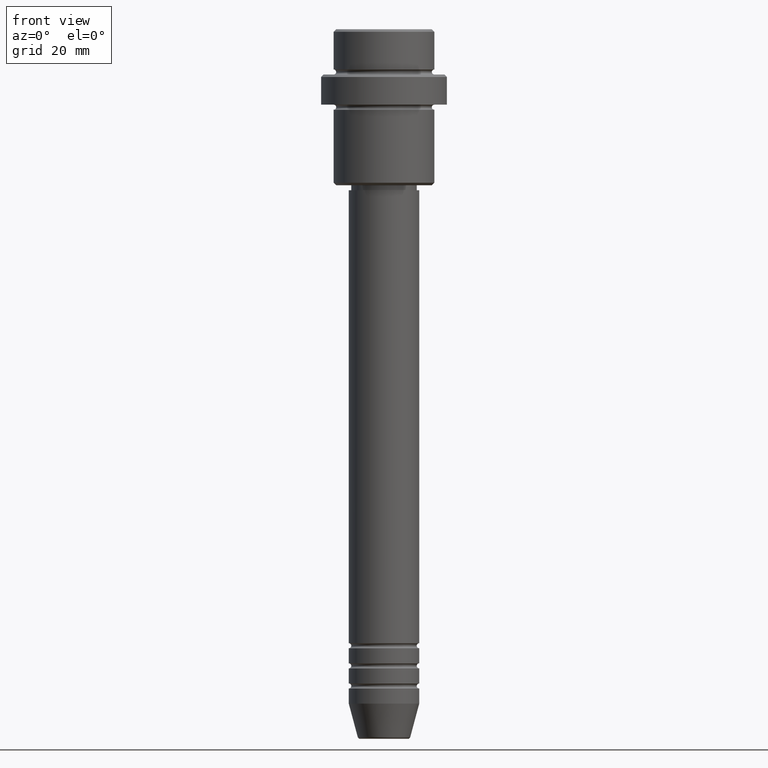
[diagram: clean part render]
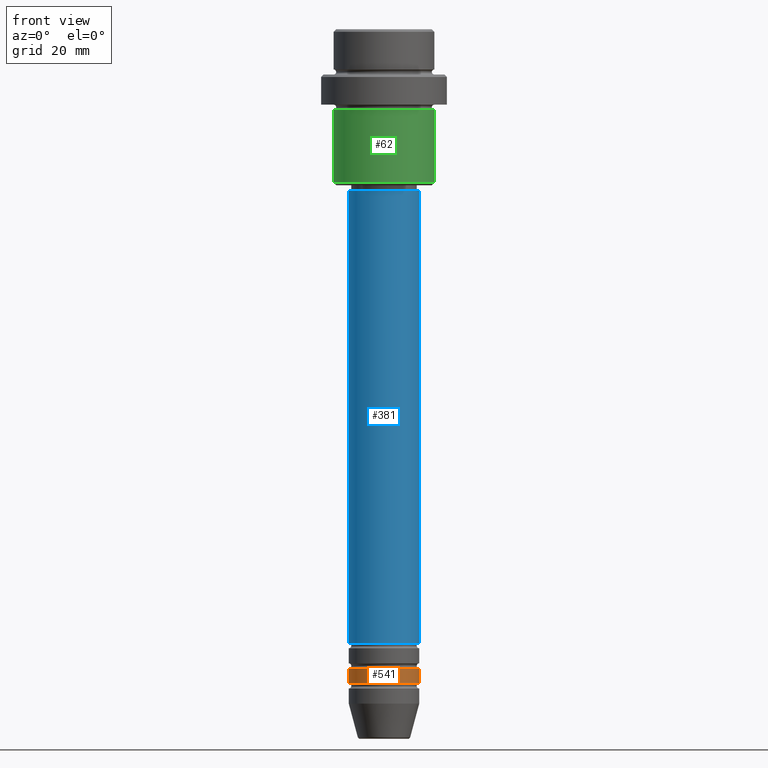
[diagram: same view with three faces highlighted in distinct colors, each labeled with its STEP entity id]
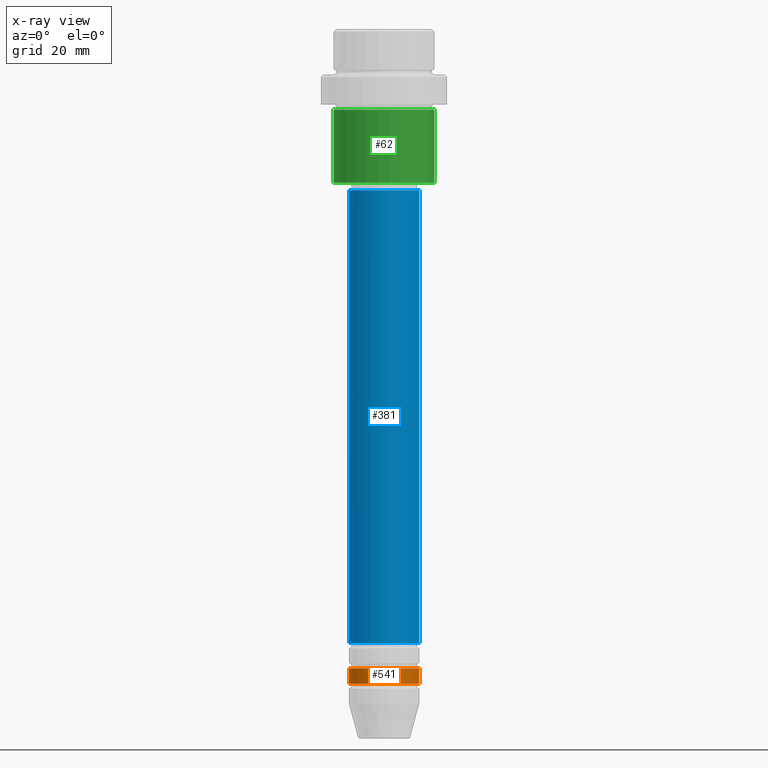
[diagram: x-ray of the same camera — body ghosted, the three highlighted faces saturated]
A machine part, front view with three faces highlighted in distinct colors.
The next image is the same camera in x-ray (body ghosted, the three faces saturated) — at least one of them is partly hidden behind the body in this view.
Their STEP definitions:

[orange] entity #541 — the highlighted cylindrical surface (edge-blend (fillet) strip) has radius 7 mm, axis along (-0, -0, 1).
#3 = CIRCLE ( 'NONE', #1306, 7.000000000000000000 ) ;
#32 = DIRECTION ( 'NONE',  ( -0.000000000000000000, -0.000000000000000000, 1.000000000000000000 ) ) ;
#33 = ORIENTED_EDGE ( 'NONE', *, *, #493, .F. ) ;
#52 = CARTESIAN_POINT ( 'NONE',  ( 0.000000000000000000, 0.000000000000000000, -129.9999999999998863 ) ) ;
#56 = VERTEX_POINT ( 'NONE', #153 ) ;
#122 = DIRECTION ( 'NONE',  ( 1.000000000000000000, 0.000000000000000000, 0.000000000000000000 ) ) ;
#153 = CARTESIAN_POINT ( 'NONE',  ( -7.000000000000000000, 8.572527594031473190E-16, -129.9999999999998863 ) ) ;
#187 = EDGE_CURVE ( 'NONE', #272, #600, #317, .T. ) ;
#272 = VERTEX_POINT ( 'NONE', #753 ) ;
#310 = ORIENTED_EDGE ( 'NONE', *, *, #187, .T. ) ;
#315 = ORIENTED_EDGE ( 'NONE', *, *, #426, .F. ) ;
#317 = LINE ( 'NONE', #637, #765 ) ;
#321 = EDGE_CURVE ( 'NONE', #56, #272, #3, .T. ) ;
#327 = AXIS2_PLACEMENT_3D ( 'NONE', #1308, #971, #122 ) ;
#338 = DIRECTION ( 'NONE',  ( -0.000000000000000000, -0.000000000000000000, 1.000000000000000000 ) ) ;
#423 = LINE ( 'NONE', #817, #855 ) ;
#426 = EDGE_CURVE ( 'NONE', #56, #962, #423, .T. ) ;
#431 = CYLINDRICAL_SURFACE ( 'NONE', #327, 7.000000000000000000 ) ;
#493 = EDGE_CURVE ( 'NONE', #962, #600, #500, .T. ) ;
#500 = CIRCLE ( 'NONE', #829, 7.000000000000000000 ) ;
#540 = FACE_OUTER_BOUND ( 'NONE', #1066, .T. ) ;
#541 = ADVANCED_FACE ( 'NONE', ( #540 ), #431, .T. ) ;
#548 = CARTESIAN_POINT ( 'NONE',  ( 0.000000000000000000, 0.000000000000000000, -126.9999999999998863 ) ) ;
#553 = DIRECTION ( 'NONE',  ( -0.000000000000000000, -0.000000000000000000, 1.000000000000000000 ) ) ;
#600 = VERTEX_POINT ( 'NONE', #664 ) ;
#637 = CARTESIAN_POINT ( 'NONE',  ( 7.000000000000000000, 0.000000000000000000, 0.000000000000000000 ) ) ;
#664 = CARTESIAN_POINT ( 'NONE',  ( 7.000000000000000000, 0.000000000000000000, -126.9999999999998863 ) ) ;
#753 = CARTESIAN_POINT ( 'NONE',  ( 7.000000000000000000, 0.000000000000000000, -129.9999999999998863 ) ) ;
#765 = VECTOR ( 'NONE', #553, 1000.000000000000000 ) ;
#817 = CARTESIAN_POINT ( 'NONE',  ( -7.000000000000000000, 8.572527594031473190E-16, 0.000000000000000000 ) ) ;
#829 = AXIS2_PLACEMENT_3D ( 'NONE', #548, #338, #1326 ) ;
#849 = CARTESIAN_POINT ( 'NONE',  ( -7.000000000000000000, 8.572527594031473190E-16, -126.9999999999998863 ) ) ;
#855 = VECTOR ( 'NONE', #1290, 1000.000000000000000 ) ;
#962 = VERTEX_POINT ( 'NONE', #849 ) ;
#971 = DIRECTION ( 'NONE',  ( -0.000000000000000000, -0.000000000000000000, 1.000000000000000000 ) ) ;
#1066 = EDGE_LOOP ( 'NONE', ( #315, #1092, #310, #33 ) ) ;
#1092 = ORIENTED_EDGE ( 'NONE', *, *, #321, .T. ) ;
#1228 = DIRECTION ( 'NONE',  ( 1.000000000000000000, 0.000000000000000000, 0.000000000000000000 ) ) ;
#1290 = DIRECTION ( 'NONE',  ( -0.000000000000000000, -0.000000000000000000, 1.000000000000000000 ) ) ;
#1306 = AXIS2_PLACEMENT_3D ( 'NONE', #52, #32, #1228 ) ;
#1308 = CARTESIAN_POINT ( 'NONE',  ( 0.000000000000000000, 0.000000000000000000, 0.000000000000000000 ) ) ;
#1326 = DIRECTION ( 'NONE',  ( 1.000000000000000000, 0.000000000000000000, 0.000000000000000000 ) ) ;

[blue] entity #381 — the highlighted cylindrical surface (edge-blend (fillet) strip) has radius 7 mm, axis along (-0, -0, 1).
#13 = DIRECTION ( 'NONE',  ( -0.000000000000000000, -0.000000000000000000, 1.000000000000000000 ) ) ;
#38 = EDGE_CURVE ( 'NONE', #497, #132, #924, .T. ) ;
#54 = CARTESIAN_POINT ( 'NONE',  ( 0.000000000000000000, 0.000000000000000000, -121.9999999999999005 ) ) ;
#69 = ORIENTED_EDGE ( 'NONE', *, *, #38, .T. ) ;
#117 = CARTESIAN_POINT ( 'NONE',  ( -7.000000000000000000, 8.572527594031473190E-16, -121.9999999999999005 ) ) ;
#132 = VERTEX_POINT ( 'NONE', #1057 ) ;
#183 = ORIENTED_EDGE ( 'NONE', *, *, #1186, .F. ) ;
#208 = LINE ( 'NONE', #337, #723 ) ;
#269 = FACE_OUTER_BOUND ( 'NONE', #492, .T. ) ;
#270 = DIRECTION ( 'NONE',  ( -0.000000000000000000, -0.000000000000000000, 1.000000000000000000 ) ) ;
#294 = DIRECTION ( 'NONE',  ( 1.000000000000000000, 0.000000000000000000, 0.000000000000000000 ) ) ;
#337 = CARTESIAN_POINT ( 'NONE',  ( -7.000000000000000000, 8.572527594031473190E-16, 0.000000000000000000 ) ) ;
#345 = CARTESIAN_POINT ( 'NONE',  ( 7.000000000000000000, 0.000000000000000000, -32.00000000000000000 ) ) ;
#381 = ADVANCED_FACE ( 'NONE', ( #269 ), #1118, .T. ) ;
#405 = CARTESIAN_POINT ( 'NONE',  ( 0.000000000000000000, 0.000000000000000000, -32.00000000000000000 ) ) ;
#471 = ORIENTED_EDGE ( 'NONE', *, *, #938, .T. ) ;
#485 = CARTESIAN_POINT ( 'NONE',  ( 0.000000000000000000, 0.000000000000000000, 0.000000000000000000 ) ) ;
#492 = EDGE_LOOP ( 'NONE', ( #683, #69, #471, #183 ) ) ;
#497 = VERTEX_POINT ( 'NONE', #117 ) ;
#591 = DIRECTION ( 'NONE',  ( 1.000000000000000000, 0.000000000000000000, 0.000000000000000000 ) ) ;
#654 = LINE ( 'NONE', #866, #1372 ) ;
#683 = ORIENTED_EDGE ( 'NONE', *, *, #892, .F. ) ;
#699 = DIRECTION ( 'NONE',  ( -0.000000000000000000, -0.000000000000000000, 1.000000000000000000 ) ) ;
#705 = VERTEX_POINT ( 'NONE', #1336 ) ;
#718 = AXIS2_PLACEMENT_3D ( 'NONE', #54, #795, #1248 ) ;
#723 = VECTOR ( 'NONE', #1298, 1000.000000000000000 ) ;
#792 = CIRCLE ( 'NONE', #953, 7.000000000000000000 ) ;
#795 = DIRECTION ( 'NONE',  ( -0.000000000000000000, -0.000000000000000000, 1.000000000000000000 ) ) ;
#866 = CARTESIAN_POINT ( 'NONE',  ( 7.000000000000000000, 0.000000000000000000, 0.000000000000000000 ) ) ;
#892 = EDGE_CURVE ( 'NONE', #497, #705, #208, .T. ) ;
#924 = CIRCLE ( 'NONE', #718, 7.000000000000000000 ) ;
#928 = AXIS2_PLACEMENT_3D ( 'NONE', #485, #699, #591 ) ;
#938 = EDGE_CURVE ( 'NONE', #132, #1091, #654, .T. ) ;
#953 = AXIS2_PLACEMENT_3D ( 'NONE', #405, #270, #294 ) ;
#1057 = CARTESIAN_POINT ( 'NONE',  ( 7.000000000000000000, 0.000000000000000000, -121.9999999999999005 ) ) ;
#1091 = VERTEX_POINT ( 'NONE', #345 ) ;
#1118 = CYLINDRICAL_SURFACE ( 'NONE', #928, 7.000000000000000000 ) ;
#1186 = EDGE_CURVE ( 'NONE', #705, #1091, #792, .T. ) ;
#1248 = DIRECTION ( 'NONE',  ( 1.000000000000000000, 0.000000000000000000, 0.000000000000000000 ) ) ;
#1298 = DIRECTION ( 'NONE',  ( -0.000000000000000000, -0.000000000000000000, 1.000000000000000000 ) ) ;
#1336 = CARTESIAN_POINT ( 'NONE',  ( -7.000000000000000000, 8.572527594031473190E-16, -32.00000000000000000 ) ) ;
#1372 = VECTOR ( 'NONE', #13, 1000.000000000000000 ) ;

[green] entity #62 — the highlighted cylindrical surface (partial cylindrical patch) has radius 10 mm, axis along (-0, -0, 1).
#62 = ADVANCED_FACE ( 'NONE', ( #1356 ), #379, .T. ) ;
#154 = EDGE_LOOP ( 'NONE', ( #724, #1015, #668, #960 ) ) ;
#176 = DIRECTION ( 'NONE',  ( -0.000000000000000000, -0.000000000000000000, 1.000000000000000000 ) ) ;
#185 = AXIS2_PLACEMENT_3D ( 'NONE', #526, #958, #669 ) ;
#235 = VERTEX_POINT ( 'NONE', #1184 ) ;
#253 = AXIS2_PLACEMENT_3D ( 'NONE', #265, #1253, #1031 ) ;
#254 = VECTOR ( 'NONE', #1278, 1000.000000000000000 ) ;
#265 = CARTESIAN_POINT ( 'NONE',  ( 0.000000000000000000, 0.000000000000000000, -30.50000000000001776 ) ) ;
#291 = LINE ( 'NONE', #298, #952 ) ;
#298 = CARTESIAN_POINT ( 'NONE',  ( -9.999999999999998224, 1.224646799147353059E-15, 0.000000000000000000 ) ) ;
#369 = CIRCLE ( 'NONE', #253, 9.999999999999998224 ) ;
#379 = CYLINDRICAL_SURFACE ( 'NONE', #675, 9.999999999999998224 ) ;
#526 = CARTESIAN_POINT ( 'NONE',  ( 0.000000000000000000, 0.000000000000000000, -16.00000000000000000 ) ) ;
#554 = CARTESIAN_POINT ( 'NONE',  ( -9.999999999999998224, 1.224646799147353059E-15, -16.00000000000000000 ) ) ;
#603 = LINE ( 'NONE', #1035, #254 ) ;
#668 = ORIENTED_EDGE ( 'NONE', *, *, #1377, .T. ) ;
#669 = DIRECTION ( 'NONE',  ( 1.000000000000000000, 0.000000000000000000, 0.000000000000000000 ) ) ;
#675 = AXIS2_PLACEMENT_3D ( 'NONE', #703, #1393, #1388 ) ;
#682 = CIRCLE ( 'NONE', #185, 9.999999999999998224 ) ;
#696 = CARTESIAN_POINT ( 'NONE',  ( 9.999999999999998224, 0.000000000000000000, -30.50000000000001776 ) ) ;
#703 = CARTESIAN_POINT ( 'NONE',  ( 0.000000000000000000, 0.000000000000000000, 0.000000000000000000 ) ) ;
#724 = ORIENTED_EDGE ( 'NONE', *, *, #744, .F. ) ;
#741 = VERTEX_POINT ( 'NONE', #696 ) ;
#744 = EDGE_CURVE ( 'NONE', #235, #887, #291, .T. ) ;
#871 = VERTEX_POINT ( 'NONE', #1269 ) ;
#887 = VERTEX_POINT ( 'NONE', #554 ) ;
#952 = VECTOR ( 'NONE', #176, 1000.000000000000000 ) ;
#958 = DIRECTION ( 'NONE',  ( -0.000000000000000000, -0.000000000000000000, 1.000000000000000000 ) ) ;
#960 = ORIENTED_EDGE ( 'NONE', *, *, #1009, .F. ) ;
#1009 = EDGE_CURVE ( 'NONE', #887, #871, #682, .T. ) ;
#1015 = ORIENTED_EDGE ( 'NONE', *, *, #1143, .T. ) ;
#1031 = DIRECTION ( 'NONE',  ( -1.000000000000000000, 0.000000000000000000, 0.000000000000000000 ) ) ;
#1035 = CARTESIAN_POINT ( 'NONE',  ( 9.999999999999998224, 0.000000000000000000, 0.000000000000000000 ) ) ;
#1143 = EDGE_CURVE ( 'NONE', #235, #741, #369, .T. ) ;
#1184 = CARTESIAN_POINT ( 'NONE',  ( -9.999999999999998224, 1.224646799147353059E-15, -30.50000000000001776 ) ) ;
#1253 = DIRECTION ( 'NONE',  ( -0.000000000000000000, -0.000000000000000000, 1.000000000000000000 ) ) ;
#1269 = CARTESIAN_POINT ( 'NONE',  ( 9.999999999999998224, 0.000000000000000000, -16.00000000000000000 ) ) ;
#1278 = DIRECTION ( 'NONE',  ( -0.000000000000000000, -0.000000000000000000, 1.000000000000000000 ) ) ;
#1356 = FACE_OUTER_BOUND ( 'NONE', #154, .T. ) ;
#1377 = EDGE_CURVE ( 'NONE', #741, #871, #603, .T. ) ;
#1388 = DIRECTION ( 'NONE',  ( 1.000000000000000000, 0.000000000000000000, 0.000000000000000000 ) ) ;
#1393 = DIRECTION ( 'NONE',  ( -0.000000000000000000, -0.000000000000000000, 1.000000000000000000 ) ) ;